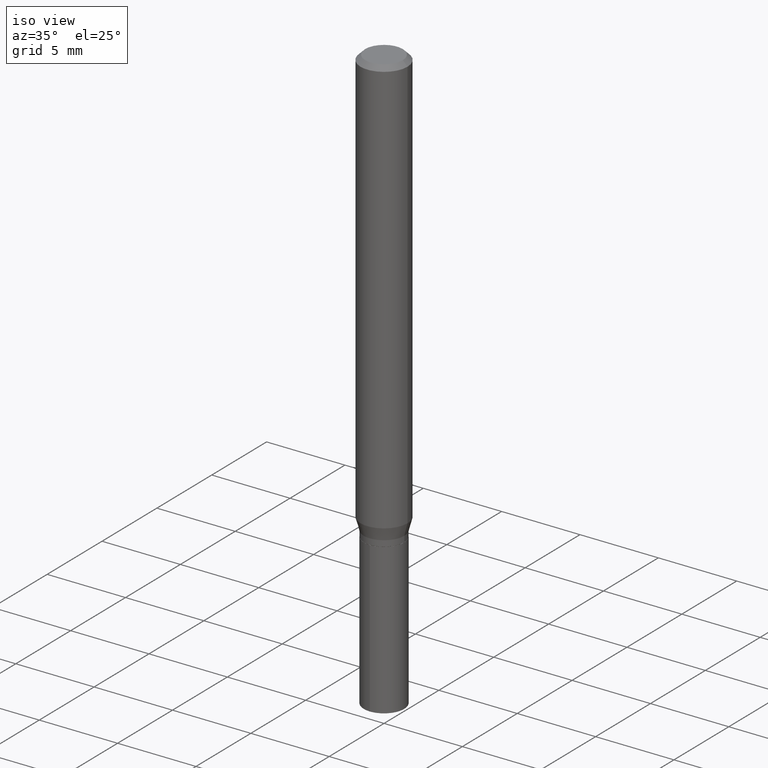
[diagram: clean part render]
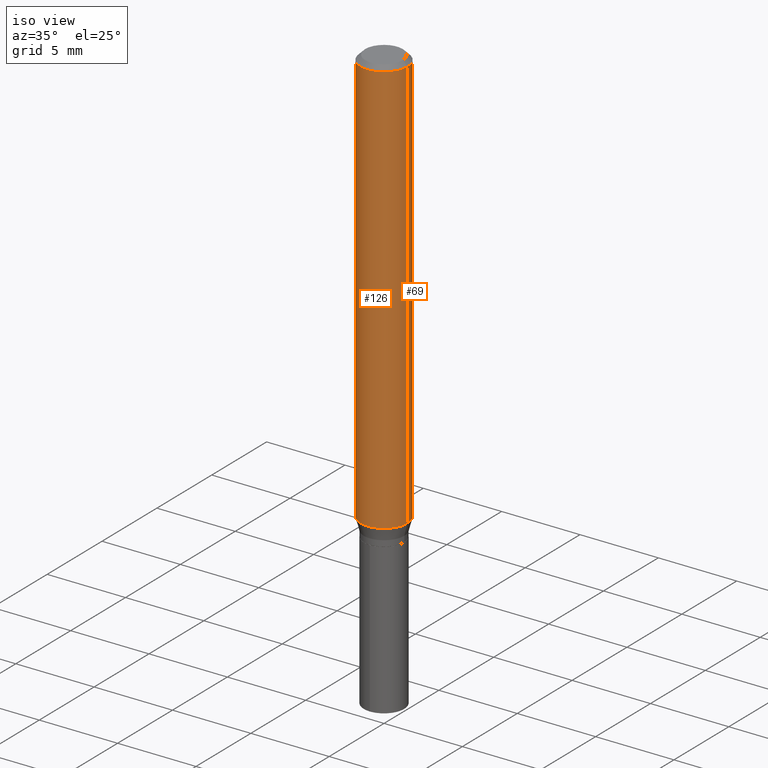
[diagram: same view with one multi-face feature highlighted, each face labeled with its STEP entity id]
A machine part, iso view. The highlighted faces form ONE feature: a constant-radius fillet chain: 2 tangent blend faces with common blend radius 1.4999 mm. The faces share edges in the B-rep.
Their STEP definitions:
[1] entity #69 (Cylinder):
#1 = EDGE_CURVE ( 'NONE', #273, #327, #63, .T. ) ;
#2 = VERTEX_POINT ( 'NONE', #466 ) ;
#6 = AXIS2_PLACEMENT_3D ( 'NONE', #459, #82, #121 ) ;
#10 = DIRECTION ( 'NONE',  ( 1.000000000000000000, -6.982962677686265133E-15, 0.000000000000000000 ) ) ;
#26 = EDGE_CURVE ( 'NONE', #2, #153, #392, .T. ) ;
#35 = CARTESIAN_POINT ( 'NONE',  ( 0.05904999999999999832, -4.535783407291118600E-16, -0.01181000000000007565 ) ) ;
#51 = VECTOR ( 'NONE', #476, 39.37007874015748143 ) ;
#59 = DIRECTION ( 'NONE',  ( -2.445468806185136597E-29, 3.491481338843145583E-15, 1.000000000000000000 ) ) ;
#61 = VECTOR ( 'NONE', #250, 39.37007874015748143 ) ;
#63 = LINE ( 'NONE', #432, #51 ) ;
#68 = CARTESIAN_POINT ( 'NONE',  ( -0.05905000000000013016, -3.241279641107575453E-15, -1.048510580837556105 ) ) ;
#69 = ADVANCED_FACE ( 'NONE', ( #478 ), #468, .T. ) ;
#78 = AXIS2_PLACEMENT_3D ( 'NONE', #319, #59, #401 ) ;
#82 = DIRECTION ( 'NONE',  ( -2.445468806185136597E-29, 3.491481338843145583E-15, 1.000000000000000000 ) ) ;
#88 = ORIENTED_EDGE ( 'NONE', *, *, #220, .T. ) ;
#94 = CARTESIAN_POINT ( 'NONE',  ( 0.05905000000000006771, -4.123439461173745257E-16, 2.879382386107503723E-30 ) ) ;
#121 = DIRECTION ( 'NONE',  ( 1.000000000000000000, -6.982962677686266711E-15, 0.000000000000000000 ) ) ;
#152 = EDGE_LOOP ( 'NONE', ( #88, #461, #405, #206 ) ) ;
#153 = VERTEX_POINT ( 'NONE', #35 ) ;
#155 = CIRCLE ( 'NONE', #6, 0.05904999999999999832 ) ;
#168 = CARTESIAN_POINT ( 'NONE',  ( 2.564099918393302910E-29, -3.660855126573914946E-15, -1.048510580837556105 ) ) ;
#188 = CIRCLE ( 'NONE', #330, 0.05905000000000013016 ) ;
#206 = ORIENTED_EDGE ( 'NONE', *, *, #26, .F. ) ;
#213 = DIRECTION ( 'NONE',  ( -2.445468806185136597E-29, 3.491481338843145583E-15, 1.000000000000000000 ) ) ;
#220 = EDGE_CURVE ( 'NONE', #2, #273, #188, .T. ) ;
#250 = DIRECTION ( 'NONE',  ( -2.445468806185136877E-29, 3.491481338843145188E-15, 1.000000000000000000 ) ) ;
#253 = CARTESIAN_POINT ( 'NONE',  ( -0.05904999999999999832, -1.431469275126486055E-15, -0.01181000000000007565 ) ) ;
#273 = VERTEX_POINT ( 'NONE', #68 ) ;
#319 = CARTESIAN_POINT ( 'NONE',  ( 0.000000000000000000, 0.000000000000000000, 0.000000000000000000 ) ) ;
#327 = VERTEX_POINT ( 'NONE', #253 ) ;
#330 = AXIS2_PLACEMENT_3D ( 'NONE', #168, #213, #10 ) ;
#392 = LINE ( 'NONE', #94, #61 ) ;
#401 = DIRECTION ( 'NONE',  ( 1.000000000000000000, -6.982962677686266711E-15, 4.876176775795936353E-29 ) ) ;
#405 = ORIENTED_EDGE ( 'NONE', *, *, #407, .F. ) ;
#407 = EDGE_CURVE ( 'NONE', #153, #327, #155, .T. ) ;
#432 = CARTESIAN_POINT ( 'NONE',  ( -0.05905000000000006771, 4.195754854663396409E-16, -2.904631170795525045E-30 ) ) ;
#459 = CARTESIAN_POINT ( 'NONE',  ( 2.888098660104664642E-31, -4.123439461173780879E-17, -0.01181000000000007565 ) ) ;
#461 = ORIENTED_EDGE ( 'NONE', *, *, #1, .T. ) ;
#466 = CARTESIAN_POINT ( 'NONE',  ( 0.05905000000000013016, -4.073199072691289866E-15, -1.048510580837556105 ) ) ;
#468 = CYLINDRICAL_SURFACE ( 'NONE', #78, 0.05905000000000006771 ) ;
#476 = DIRECTION ( 'NONE',  ( -2.445468806185136877E-29, 3.491481338843145188E-15, 1.000000000000000000 ) ) ;
#478 = FACE_OUTER_BOUND ( 'NONE', #152, .T. ) ;
[2] entity #126 (Cylinder):
#1 = EDGE_CURVE ( 'NONE', #273, #327, #63, .T. ) ;
#2 = VERTEX_POINT ( 'NONE', #466 ) ;
#26 = EDGE_CURVE ( 'NONE', #2, #153, #392, .T. ) ;
#35 = CARTESIAN_POINT ( 'NONE',  ( 0.05904999999999999832, -4.535783407291118600E-16, -0.01181000000000007565 ) ) ;
#36 = ORIENTED_EDGE ( 'NONE', *, *, #353, .T. ) ;
#51 = VECTOR ( 'NONE', #476, 39.37007874015748143 ) ;
#61 = VECTOR ( 'NONE', #250, 39.37007874015748143 ) ;
#63 = LINE ( 'NONE', #432, #51 ) ;
#68 = CARTESIAN_POINT ( 'NONE',  ( -0.05905000000000013016, -3.241279641107575453E-15, -1.048510580837556105 ) ) ;
#70 = DIRECTION ( 'NONE',  ( 1.000000000000000000, -6.982962677686266711E-15, 0.000000000000000000 ) ) ;
#94 = CARTESIAN_POINT ( 'NONE',  ( 0.05905000000000006771, -4.123439461173745257E-16, 2.879382386107503723E-30 ) ) ;
#102 = FACE_OUTER_BOUND ( 'NONE', #475, .T. ) ;
#120 = CIRCLE ( 'NONE', #346, 0.05905000000000013016 ) ;
#126 = ADVANCED_FACE ( 'NONE', ( #102 ), #252, .T. ) ;
#153 = VERTEX_POINT ( 'NONE', #35 ) ;
#154 = AXIS2_PLACEMENT_3D ( 'NONE', #408, #409, #70 ) ;
#159 = EDGE_CURVE ( 'NONE', #327, #153, #368, .T. ) ;
#179 = DIRECTION ( 'NONE',  ( -2.445468806185136597E-29, 3.491481338843145583E-15, 1.000000000000000000 ) ) ;
#210 = ORIENTED_EDGE ( 'NONE', *, *, #26, .T. ) ;
#232 = DIRECTION ( 'NONE',  ( 1.000000000000000000, -6.982962677686265133E-15, 0.000000000000000000 ) ) ;
#250 = DIRECTION ( 'NONE',  ( -2.445468806185136877E-29, 3.491481338843145188E-15, 1.000000000000000000 ) ) ;
#252 = CYLINDRICAL_SURFACE ( 'NONE', #354, 0.05905000000000006771 ) ;
#253 = CARTESIAN_POINT ( 'NONE',  ( -0.05904999999999999832, -1.431469275126486055E-15, -0.01181000000000007565 ) ) ;
#267 = DIRECTION ( 'NONE',  ( -2.445468806185136597E-29, 3.491481338843145583E-15, 1.000000000000000000 ) ) ;
#273 = VERTEX_POINT ( 'NONE', #68 ) ;
#300 = CARTESIAN_POINT ( 'NONE',  ( 2.564099918393302910E-29, -3.660855126573914946E-15, -1.048510580837556105 ) ) ;
#327 = VERTEX_POINT ( 'NONE', #253 ) ;
#346 = AXIS2_PLACEMENT_3D ( 'NONE', #300, #267, #232 ) ;
#353 = EDGE_CURVE ( 'NONE', #273, #2, #120, .T. ) ;
#354 = AXIS2_PLACEMENT_3D ( 'NONE', #365, #179, #449 ) ;
#358 = ORIENTED_EDGE ( 'NONE', *, *, #159, .F. ) ;
#365 = CARTESIAN_POINT ( 'NONE',  ( 0.000000000000000000, 0.000000000000000000, 0.000000000000000000 ) ) ;
#368 = CIRCLE ( 'NONE', #154, 0.05904999999999999832 ) ;
#372 = ORIENTED_EDGE ( 'NONE', *, *, #1, .F. ) ;
#392 = LINE ( 'NONE', #94, #61 ) ;
#408 = CARTESIAN_POINT ( 'NONE',  ( 2.888098660104664642E-31, -4.123439461173780879E-17, -0.01181000000000007565 ) ) ;
#409 = DIRECTION ( 'NONE',  ( -2.445468806185136597E-29, 3.491481338843145583E-15, 1.000000000000000000 ) ) ;
#432 = CARTESIAN_POINT ( 'NONE',  ( -0.05905000000000006771, 4.195754854663396409E-16, -2.904631170795525045E-30 ) ) ;
#449 = DIRECTION ( 'NONE',  ( 1.000000000000000000, -6.982962677686266711E-15, 4.876176775795936353E-29 ) ) ;
#466 = CARTESIAN_POINT ( 'NONE',  ( 0.05905000000000013016, -4.073199072691289866E-15, -1.048510580837556105 ) ) ;
#475 = EDGE_LOOP ( 'NONE', ( #372, #36, #210, #358 ) ) ;
#476 = DIRECTION ( 'NONE',  ( -2.445468806185136877E-29, 3.491481338843145188E-15, 1.000000000000000000 ) ) ;